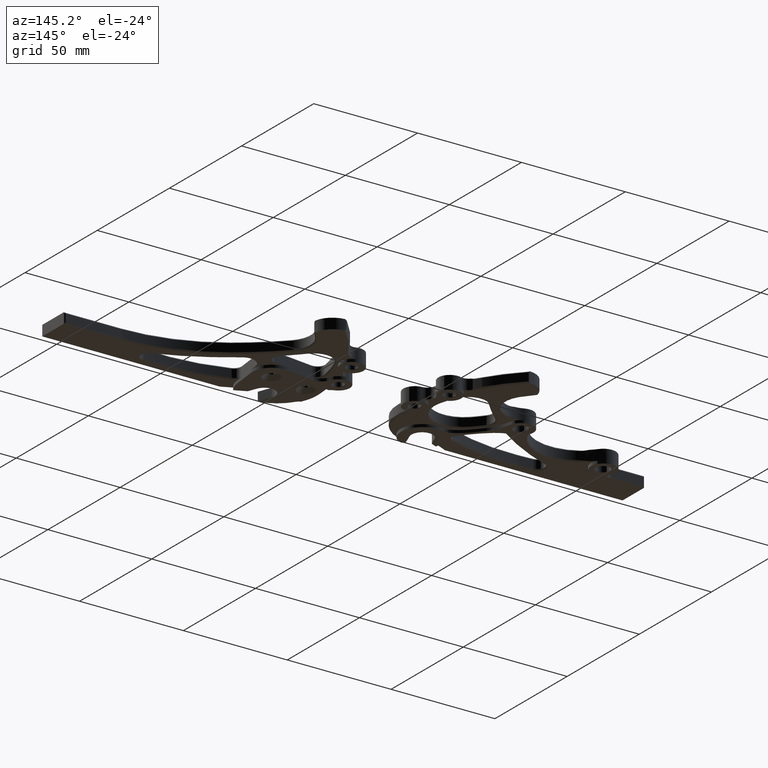
[diagram: clean part render]
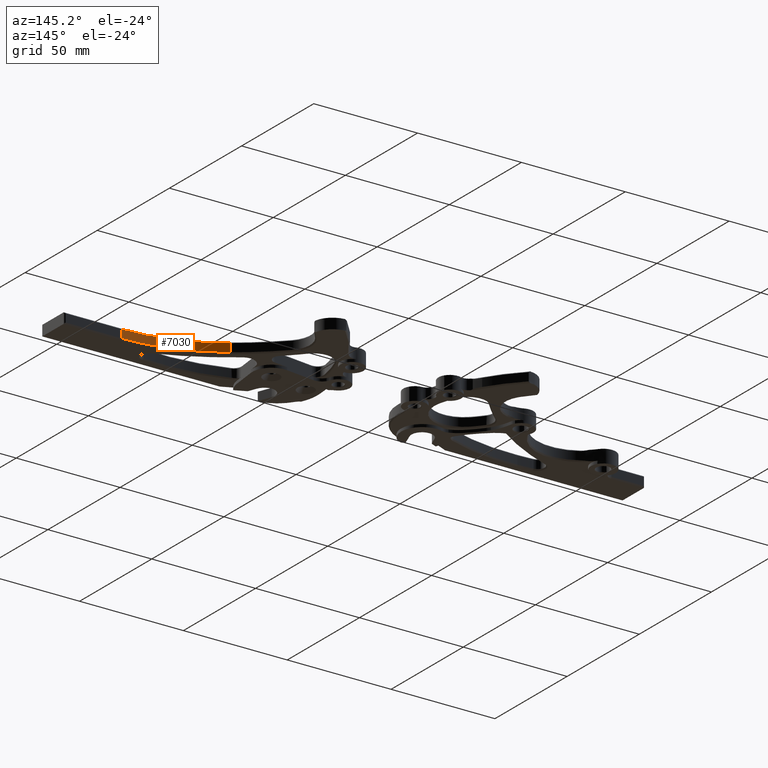
[diagram: same view with one face highlighted and labeled with its STEP entity id]
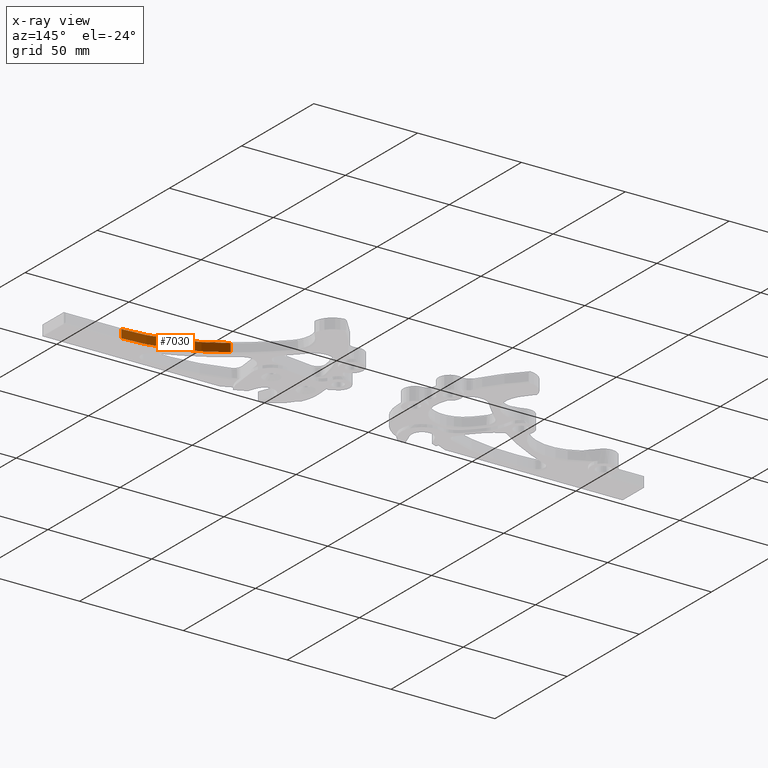
[diagram: x-ray of the same camera — body ghosted, the highlighted face saturated]
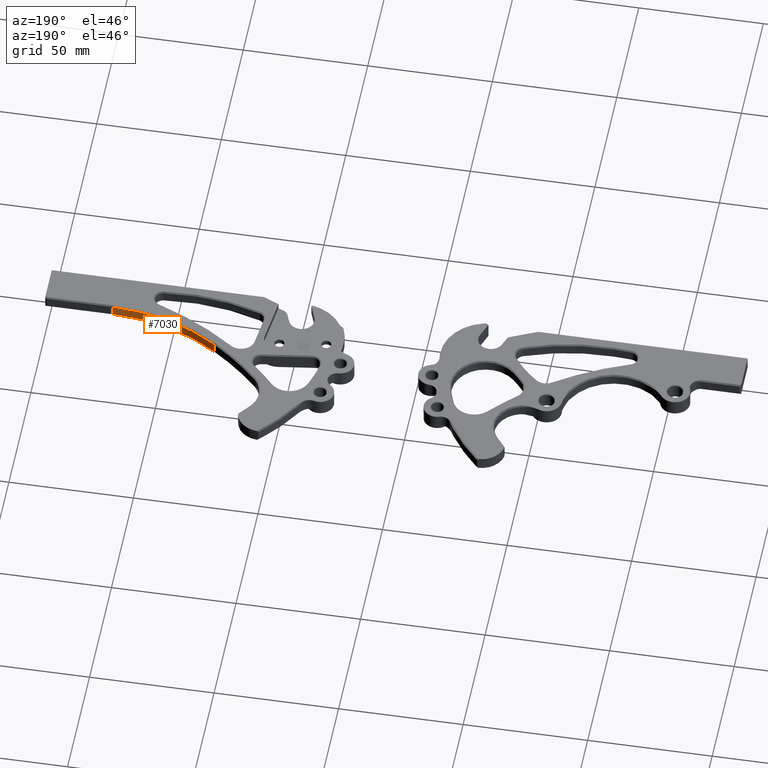
[diagram: same view with one face highlighted and labeled with its STEP entity id]
A machine part, auxiliary view. The second image highlights one B-rep face of the part: STEP entity #7030.
The next image is the same camera in x-ray: the body ghosted, the highlighted face saturated — about 0% of this face is hidden behind the body in this view.
A second angle (auxiliary view) of the same face is appended — the face is thin or edge-on in the first view.
In plain terms, the highlighted cylindrical surface (partial cylindrical patch) has radius 76.2 mm, axis along (-0, -0, -1).
Its self-contained STEP definition (entity closure, byte-faithful):
#259 = CARTESIAN_POINT ( 'NONE',  ( 11.90444023136118000, -6.392317487360132900, 0.1769999999990286300 ) ) ;
#768 = FACE_OUTER_BOUND ( 'NONE', #2152, .T. ) ;
#902 = CIRCLE ( 'NONE', #6279, 3.000000000000082600 ) ;
#1136 = DIRECTION ( 'NONE',  ( -0.0000000000000000000, -0.0000000000000000000, -1.000000000000000000 ) ) ;
#1206 = EDGE_CURVE ( 'NONE', #4997, #3502, #7320, .T. ) ;
#1922 = CARTESIAN_POINT ( 'NONE',  ( 13.49104769700490500, -8.938427608694947700, 0.1970000000000000100 ) ) ;
#2152 = EDGE_LOOP ( 'NONE', ( #7574, #5688, #3153, #9037 ) ) ;
#2689 = DIRECTION ( 'NONE',  ( -1.000000000000000000, 0.0000000000000000000, 0.0000000000000000000 ) ) ;
#3153 = ORIENTED_EDGE ( 'NONE', *, *, #4980, .T. ) ;
#3235 = DIRECTION ( 'NONE',  ( -0.0000000000000000000, -0.0000000000000000000, -1.000000000000000000 ) ) ;
#3502 = VERTEX_POINT ( 'NONE', #4720 ) ;
#4447 = DIRECTION ( 'NONE',  ( 0.0000000000000000000, 0.0000000000000000000, -1.000000000000000000 ) ) ;
#4639 = CYLINDRICAL_SURFACE ( 'NONE', #9247, 3.000000000000082600 ) ;
#4720 = CARTESIAN_POINT ( 'NONE',  ( 13.62974191355229800, -5.941635337899686700, 0.1769999999993493200 ) ) ;
#4888 = LINE ( 'NONE', #8603, #6721 ) ;
#4980 = EDGE_CURVE ( 'NONE', #8413, #8355, #902, .T. ) ;
#4997 = VERTEX_POINT ( 'NONE', #259 ) ;
#5485 = DIRECTION ( 'NONE',  ( -0.0000000000000000000, -0.0000000000000000000, -1.000000000000000000 ) ) ;
#5630 = LINE ( 'NONE', #8707, #9763 ) ;
#5688 = ORIENTED_EDGE ( 'NONE', *, *, #6420, .T. ) ;
#6279 = AXIS2_PLACEMENT_3D ( 'NONE', #6800, #4447, #9704 ) ;
#6420 = EDGE_CURVE ( 'NONE', #4997, #8413, #4888, .T. ) ;
#6571 = CARTESIAN_POINT ( 'NONE',  ( 13.49104769700490500, -8.938427608694947700, 0.1769999999990996600 ) ) ;
#6646 = DIRECTION ( 'NONE',  ( 1.000000000000000000, -7.284927983104501500E-015, 0.0000000000000000000 ) ) ;
#6721 = VECTOR ( 'NONE', #5485, 39.37007874015748100 ) ;
#6800 = CARTESIAN_POINT ( 'NONE',  ( 13.49104769700490500, -8.938427608694947700, 0.01999999999987254700 ) ) ;
#6901 = CARTESIAN_POINT ( 'NONE',  ( 13.62974191355230700, -5.941635337899546300, 0.01999999999949548700 ) ) ;
#6925 = EDGE_CURVE ( 'NONE', #3502, #8355, #5630, .T. ) ;
#7030 = ADVANCED_FACE ( 'NONE', ( #768 ), #4639, .F. ) ;
#7320 = CIRCLE ( 'NONE', #9079, 3.000000000000082600 ) ;
#7574 = ORIENTED_EDGE ( 'NONE', *, *, #1206, .F. ) ;
#7786 = DIRECTION ( 'NONE',  ( -0.0000000000000000000, -0.0000000000000000000, -1.000000000000000000 ) ) ;
#8355 = VERTEX_POINT ( 'NONE', #6901 ) ;
#8413 = VERTEX_POINT ( 'NONE', #10103 ) ;
#8603 = CARTESIAN_POINT ( 'NONE',  ( 11.90444023136299600, -6.392317487359002300, 0.1970000000000000100 ) ) ;
#8707 = CARTESIAN_POINT ( 'NONE',  ( 13.62974191355471000, -5.941635337900035700, 0.1970000000000000100 ) ) ;
#9037 = ORIENTED_EDGE ( 'NONE', *, *, #6925, .F. ) ;
#9079 = AXIS2_PLACEMENT_3D ( 'NONE', #6571, #7786, #6646 ) ;
#9247 = AXIS2_PLACEMENT_3D ( 'NONE', #1922, #1136, #2689 ) ;
#9704 = DIRECTION ( 'NONE',  ( -1.000000000000000000, 0.0000000000000000000, 0.0000000000000000000 ) ) ;
#9763 = VECTOR ( 'NONE', #3235, 39.37007874015748100 ) ;
#10103 = CARTESIAN_POINT ( 'NONE',  ( 11.90444023136114100, -6.392317487360059200, 0.01999999999987362200 ) ) ;